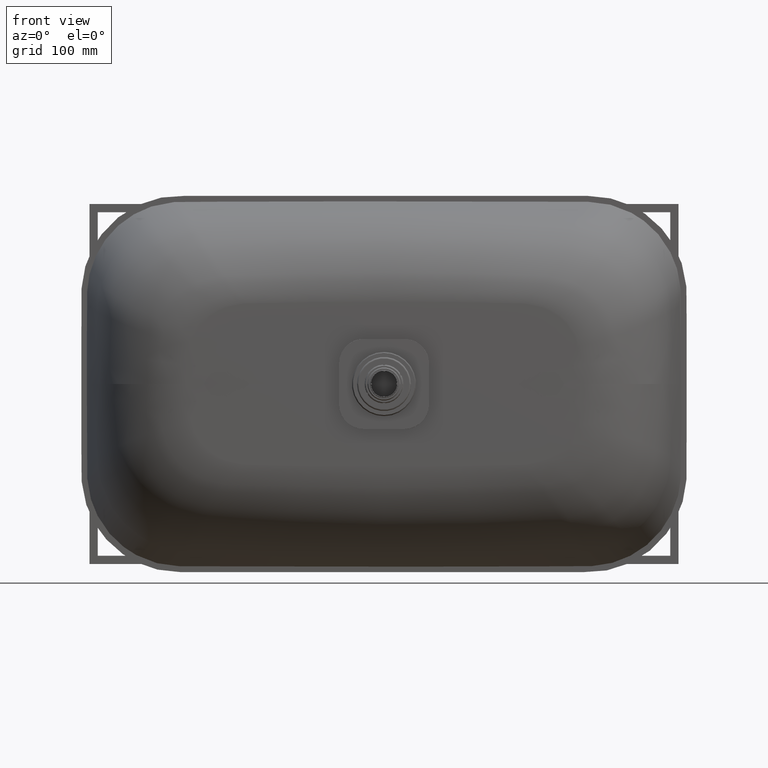
[diagram: clean part render]
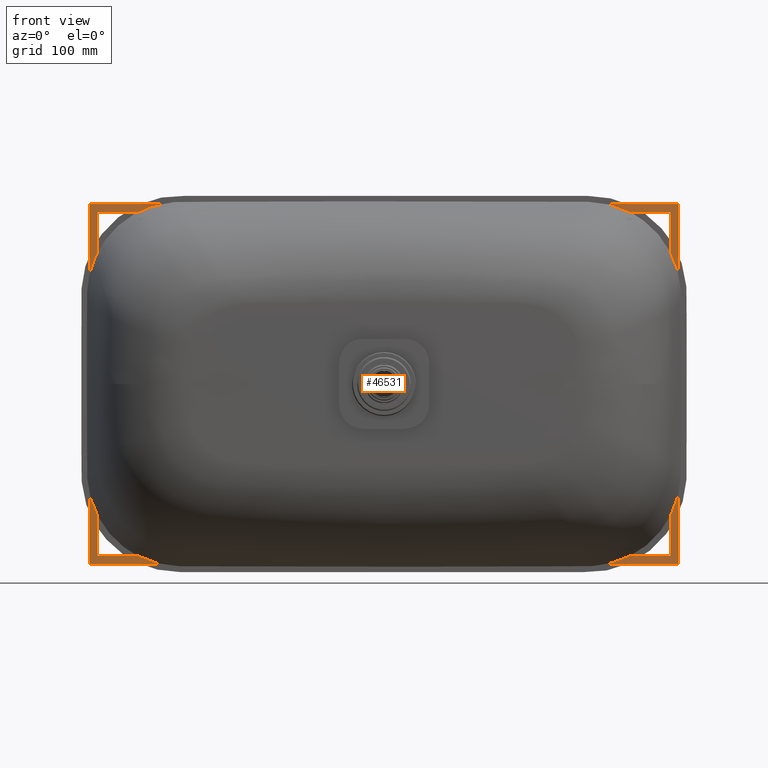
[diagram: same view with one face highlighted and labeled with its STEP entity id]
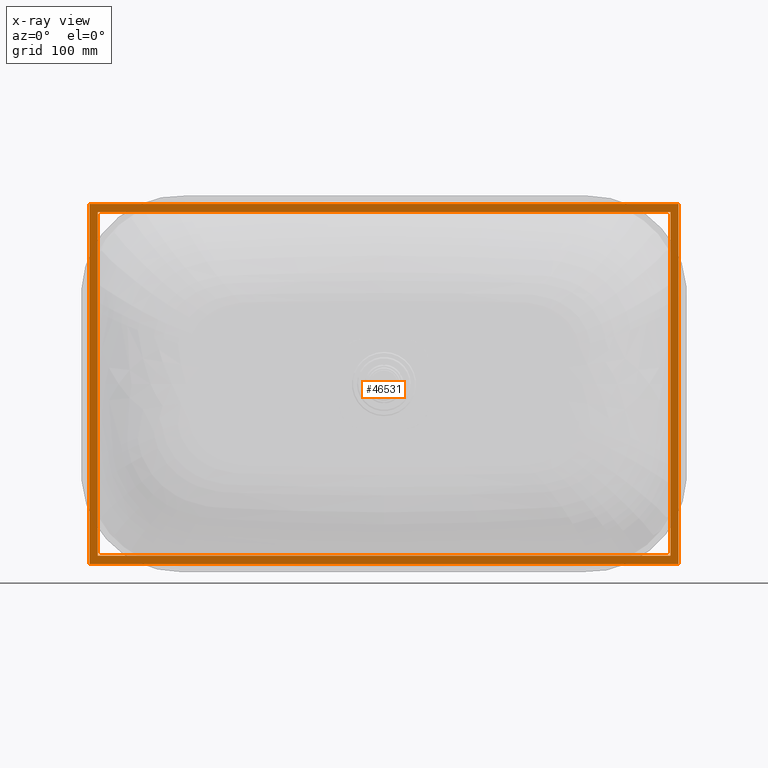
[diagram: x-ray of the same camera — body ghosted, the highlighted face saturated]
A machine part, front view. The second image highlights one B-rep face of the part: STEP entity #46531.
The next image is the same camera in x-ray: the body ghosted, the highlighted face saturated — about 0% of this face is hidden behind the body in this view.
In plain terms, the highlighted planar face has unit normal (0, 1, 0).
Its self-contained STEP definition (entity closure, byte-faithful):
#836 = CARTESIAN_POINT ( 'NONE',  ( 349.9999999999998863, -10.00000000000000000, -210.0000000000001705 ) ) ;
#1828 = VERTEX_POINT ( 'NONE', #53568 ) ;
#3269 = EDGE_CURVE ( 'NONE', #54211, #70273, #62346, .T. ) ;
#4813 = CARTESIAN_POINT ( 'NONE',  ( -349.9999999999999432, -10.00000000000000000, 209.9999999999996874 ) ) ;
#9594 = LINE ( 'NONE', #35212, #26919 ) ;
#10112 = VERTEX_POINT ( 'NONE', #30915 ) ;
#10200 = CARTESIAN_POINT ( 'NONE',  ( -349.9999999999999432, -10.00000000000000000, 209.9999999999996874 ) ) ;
#11798 = LINE ( 'NONE', #37413, #17597 ) ;
#12724 = ORIENTED_EDGE ( 'NONE', *, *, #77700, .T. ) ;
#12828 = CARTESIAN_POINT ( 'NONE',  ( 349.9999999999998295, -10.00000000000000000, 209.9999999999996874 ) ) ;
#13663 = VECTOR ( 'NONE', #67345, 1000.000000000000000 ) ;
#15029 = VERTEX_POINT ( 'NONE', #55063 ) ;
#15634 = CARTESIAN_POINT ( 'NONE',  ( 349.9999999999998863, -10.00000000000000000, -210.0000000000001705 ) ) ;
#16100 = LINE ( 'NONE', #41713, #13663 ) ;
#16661 = EDGE_LOOP ( 'NONE', ( #19789, #57156, #56644, #45774 ) ) ;
#17597 = VECTOR ( 'NONE', #63035, 1000.000000000000000 ) ;
#18178 = DIRECTION ( 'NONE',  ( 0.0000000000000000000, 1.000000000000000000, 0.0000000000000000000 ) ) ;
#19789 = ORIENTED_EDGE ( 'NONE', *, *, #66063, .F. ) ;
#20258 = DIRECTION ( 'NONE',  ( -1.000000000000000000, -0.0000000000000000000, -0.0000000000000000000 ) ) ;
#21498 = CARTESIAN_POINT ( 'NONE',  ( -360.0000000000000000, -10.00000000000000000, -220.0000000000001705 ) ) ;
#24478 = FACE_OUTER_BOUND ( 'NONE', #16661, .T. ) ;
#26446 = DIRECTION ( 'NONE',  ( 1.321694076934710895E-16, -0.0000000000000000000, -1.000000000000000000 ) ) ;
#26919 = VECTOR ( 'NONE', #60824, 1000.000000000000000 ) ;
#27372 = EDGE_CURVE ( 'NONE', #61463, #54211, #11798, .T. ) ;
#27493 = EDGE_LOOP ( 'NONE', ( #12724, #41389, #35351, #37569 ) ) ;
#27764 = EDGE_CURVE ( 'NONE', #70273, #72261, #58371, .T. ) ;
#30435 = DIRECTION ( 'NONE',  ( 1.000000000000000000, 0.0000000000000000000, 0.0000000000000000000 ) ) ;
#30915 = CARTESIAN_POINT ( 'NONE',  ( 359.9999999999998863, -10.00000000000000000, -220.0000000000001705 ) ) ;
#32253 = VERTEX_POINT ( 'NONE', #74951 ) ;
#35057 = LINE ( 'NONE', #54368, #62409 ) ;
#35212 = CARTESIAN_POINT ( 'NONE',  ( -359.9999999999999432, -10.00000000000000000, 219.9999999999996874 ) ) ;
#35351 = ORIENTED_EDGE ( 'NONE', *, *, #3269, .T. ) ;
#37413 = CARTESIAN_POINT ( 'NONE',  ( -350.0000000000000000, -10.00000000000000000, -210.0000000000001705 ) ) ;
#37569 = ORIENTED_EDGE ( 'NONE', *, *, #27764, .T. ) ;
#37742 = VECTOR ( 'NONE', #26446, 1000.000000000000000 ) ;
#38180 = EDGE_CURVE ( 'NONE', #1828, #15029, #9594, .T. ) ;
#41389 = ORIENTED_EDGE ( 'NONE', *, *, #27372, .T. ) ;
#41713 = CARTESIAN_POINT ( 'NONE',  ( 359.9999999999998863, -10.00000000000000000, -220.0000000000001705 ) ) ;
#43797 = DIRECTION ( 'NONE',  ( 0.0000000000000000000, -0.0000000000000000000, 1.000000000000000000 ) ) ;
#45351 = EDGE_CURVE ( 'NONE', #15029, #10112, #16100, .T. ) ;
#45774 = ORIENTED_EDGE ( 'NONE', *, *, #38180, .F. ) ;
#46531 = ADVANCED_FACE ( 'NONE', ( #82034, #24478 ), #50095, .F. ) ;
#47114 = DIRECTION ( 'NONE',  ( 1.261617073437678492E-16, 0.0000000000000000000, 1.000000000000000000 ) ) ;
#50095 = PLANE ( 'NONE',  #74056 ) ;
#52174 = LINE ( 'NONE', #77813, #77048 ) ;
#52250 = CARTESIAN_POINT ( 'NONE',  ( -350.0000000000000000, -10.00000000000000000, -210.0000000000001705 ) ) ;
#53568 = CARTESIAN_POINT ( 'NONE',  ( -359.9999999999999432, -10.00000000000000000, 219.9999999999996874 ) ) ;
#54211 = VERTEX_POINT ( 'NONE', #10200 ) ;
#54368 = CARTESIAN_POINT ( 'NONE',  ( -350.0000000000000000, -10.00000000000000000, -210.0000000000001705 ) ) ;
#55063 = CARTESIAN_POINT ( 'NONE',  ( 359.9999999999998863, -10.00000000000000000, 219.9999999999996874 ) ) ;
#56644 = ORIENTED_EDGE ( 'NONE', *, *, #45351, .F. ) ;
#57156 = ORIENTED_EDGE ( 'NONE', *, *, #71505, .F. ) ;
#58371 = LINE ( 'NONE', #836, #37742 ) ;
#60824 = DIRECTION ( 'NONE',  ( 1.000000000000000000, 0.0000000000000000000, 0.0000000000000000000 ) ) ;
#61463 = VERTEX_POINT ( 'NONE', #52250 ) ;
#62346 = LINE ( 'NONE', #4813, #83150 ) ;
#62409 = VECTOR ( 'NONE', #80015, 1000.000000000000000 ) ;
#63035 = DIRECTION ( 'NONE',  ( 1.321694076934710895E-16, 0.0000000000000000000, 1.000000000000000000 ) ) ;
#66063 = EDGE_CURVE ( 'NONE', #32253, #1828, #79056, .T. ) ;
#67345 = DIRECTION ( 'NONE',  ( -0.0000000000000000000, -0.0000000000000000000, -1.000000000000000000 ) ) ;
#68898 = VECTOR ( 'NONE', #47114, 1000.000000000000000 ) ;
#70273 = VERTEX_POINT ( 'NONE', #12828 ) ;
#71505 = EDGE_CURVE ( 'NONE', #10112, #32253, #52174, .T. ) ;
#72261 = VERTEX_POINT ( 'NONE', #15634 ) ;
#74056 = AXIS2_PLACEMENT_3D ( 'NONE', #75734, #18178, #43797 ) ;
#74951 = CARTESIAN_POINT ( 'NONE',  ( -360.0000000000000000, -10.00000000000000000, -220.0000000000001705 ) ) ;
#75734 = CARTESIAN_POINT ( 'NONE',  ( 0.0000000000000000000, -10.00000000000000000, 0.0000000000000000000 ) ) ;
#77048 = VECTOR ( 'NONE', #20258, 1000.000000000000000 ) ;
#77700 = EDGE_CURVE ( 'NONE', #72261, #61463, #35057, .T. ) ;
#77813 = CARTESIAN_POINT ( 'NONE',  ( -360.0000000000000000, -10.00000000000000000, -220.0000000000001705 ) ) ;
#79056 = LINE ( 'NONE', #21498, #68898 ) ;
#80015 = DIRECTION ( 'NONE',  ( -1.000000000000000000, -0.0000000000000000000, -0.0000000000000000000 ) ) ;
#82034 = FACE_BOUND ( 'NONE', #27493, .T. ) ;
#83150 = VECTOR ( 'NONE', #30435, 1000.000000000000000 ) ;